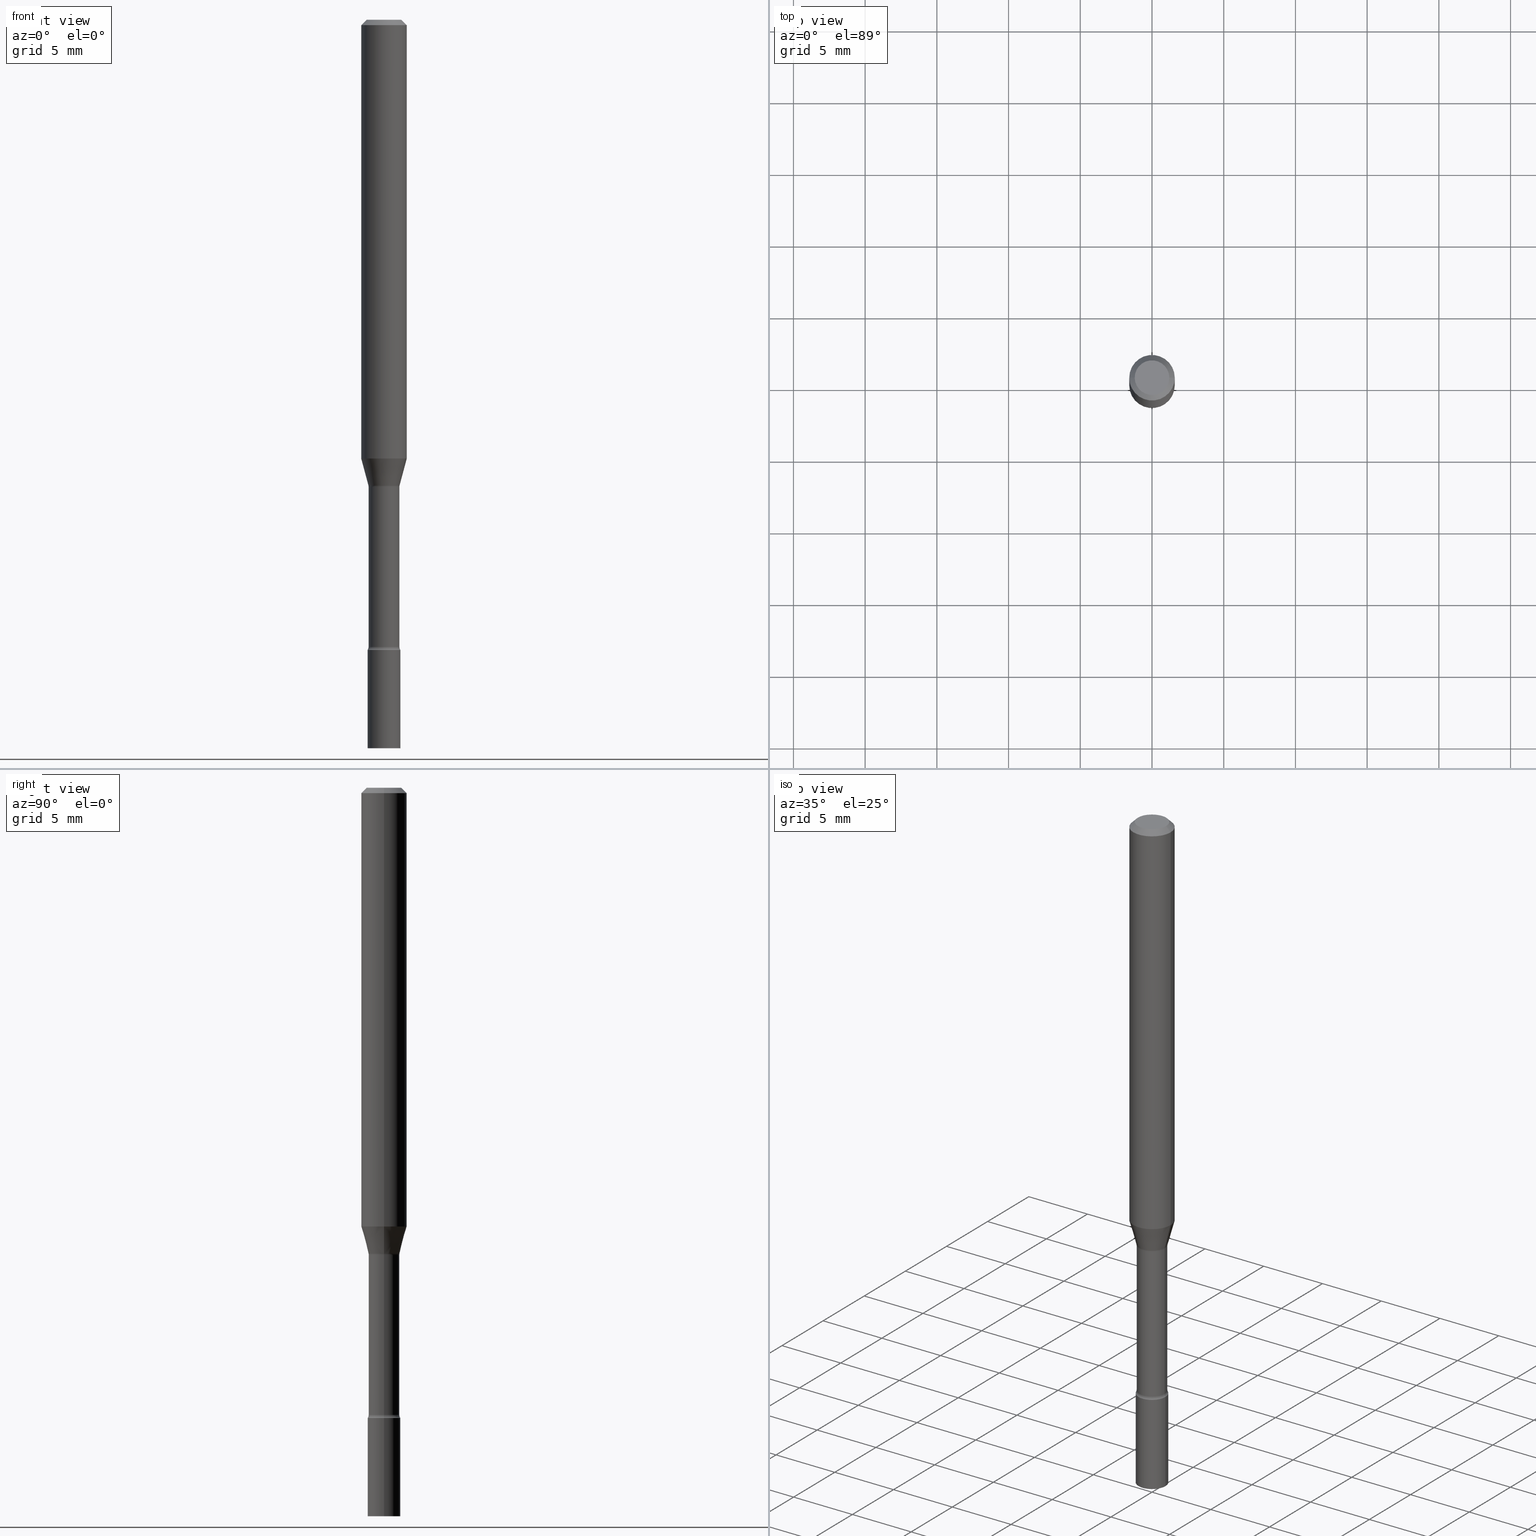
[diagram: canonical four-view strip — front | top / right | iso, engineering-drawing reading convention]
A machine part, canonical four-view strip (front | top / right | iso — engineering-drawing reading convention). The complete STEP part file that produces these views, byte-faithful:
ISO-10303-21;
HEADER;
FILE_DESCRIPTION (( 'STEP AP203' ),
    '1' );
FILE_NAME ('09879.STEP',
    '2024-03-09T02:42:45',
    ( '' ),
    ( '' ),
    'SwSTEP 2.0',
    'SolidWorks 2023',
    '' );
FILE_SCHEMA (( 'CONFIG_CONTROL_DESIGN' ));
ENDSEC;

DATA;
#1 = COORDINATED_UNIVERSAL_TIME_OFFSET ( 5, 0, .BEHIND. ) ;
#2 = DIRECTION ( 'NONE',  ( -6.982962677686266711E-15, -1.000000000000000000, 3.491481338843145583E-15 ) ) ;
#3 = ADVANCED_FACE ( 'NONE', ( #167 ), #329, .T. ) ;
#4 = DIRECTION ( 'NONE',  ( -2.445468806185136597E-29, 3.491481338843145583E-15, 1.000000000000000000 ) ) ;
#5 = PLANE ( 'NONE',  #238 ) ;
#6 = ADVANCED_FACE ( 'NONE', ( #178 ), #387, .T. ) ;
#7 = DIRECTION ( 'NONE',  ( -2.438088387897960049E-29, 3.491481338843145188E-15, 1.000000000000000000 ) ) ;
#8 = EDGE_LOOP ( 'NONE', ( #40, #136, #484, #93 ) ) ;
#9 = FACE_OUTER_BOUND ( 'NONE', #369, .T. ) ;
#10 = ORIENTED_EDGE ( 'NONE', *, *, #42, .T. ) ;
#11 = FACE_OUTER_BOUND ( 'NONE', #173, .T. ) ;
#12 = ORIENTED_EDGE ( 'NONE', *, *, #119, .F. ) ;
#13 = PRODUCT_RELATED_PRODUCT_CATEGORY ( 'detail', '', ( #360 ) ) ;
#14 = CLOSED_SHELL ( 'NONE', ( #498, #477, #147, #139, #80, #396, #460, #6, #153, #307, #335, #421, #3, #168 ) ) ;
#15 = AXIS2_PLACEMENT_3D ( 'NONE', #57, #413, #370 ) ;
#16 = CARTESIAN_POINT ( 'NONE',  ( 2.945842472490219307E-29, -4.205882321564354559E-15, -1.204612573687108945 ) ) ;
#17 = ORIENTED_EDGE ( 'NONE', *, *, #160, .F. ) ;
#18 = MANIFOLD_SOLID_BREP ( 'Body-Move/Copy2[1]', #361 ) ;
#19 = DATE_AND_TIME ( #298, #453 ) ;
#20 = CARTESIAN_POINT ( 'NONE',  ( 2.945842472490219307E-29, -4.205882321564354559E-15, -1.204612573687108945 ) ) ;
#21 = DATE_AND_TIME ( #426, #513 ) ;
#22 = DIRECTION ( 'NONE',  ( 1.000000000000000000, -6.982962677686269866E-15, 4.883557194083113462E-29 ) ) ;
#23 = VECTOR ( 'NONE', #64, 39.37007874015747433 ) ;
#24 = CIRCLE ( 'NONE', #202, 0.01500000000000004455 ) ;
#25 = EDGE_CURVE ( 'NONE', #493, #358, #330, .T. ) ;
#26 = DIRECTION ( 'NONE',  ( 1.000000000000000000, -6.982962677686266711E-15, 4.876176775795935793E-29 ) ) ;
#27 = AXIS2_PLACEMENT_3D ( 'NONE', #187, #230, #391 ) ;
#28 = ORIENTED_EDGE ( 'NONE', *, *, #221, .F. ) ;
#29 = PERSON_AND_ORGANIZATION ( #313, #179 ) ;
#30 = CARTESIAN_POINT ( 'NONE',  ( 0.04230000000000001814, -6.305666089183526283E-15, -1.721414547187247290 ) ) ;
#31 = CARTESIAN_POINT ( 'NONE',  ( 0.04499999999999999833, -6.354496036694523059E-15, -1.729999999999999760 ) ) ;
#32 = EDGE_CURVE ( 'NONE', #395, #517, #338, .T. ) ;
#33 = ORIENTED_EDGE ( 'NONE', *, *, #160, .T. ) ;
#34 = LOCAL_TIME ( 21, 42, 45.00000000000000000, #293 ) ;
#35 = FACE_OUTER_BOUND ( 'NONE', #510, .T. ) ;
#36 = ORIENTED_EDGE ( 'NONE', *, *, #469, .F. ) ;
#37 = DIRECTION ( 'NONE',  ( 1.000000000000000000, -6.982962677686265922E-15, 4.876176775795935793E-29 ) ) ;
#38 = VERTEX_POINT ( 'NONE', #504 ) ;
#39 = DIRECTION ( 'NONE',  ( 1.000000000000000000, -6.982962677686263555E-15, 4.883557194083111780E-29 ) ) ;
#40 = ORIENTED_EDGE ( 'NONE', *, *, #431, .F. ) ;
#41 = DIRECTION ( 'NONE',  ( 1.000000000000000000, -6.982962677686247778E-15, 0.000000000000000000 ) ) ;
#42 = EDGE_CURVE ( 'NONE', #225, #414, #420, .T. ) ;
#43 = VECTOR ( 'NONE', #516, 39.37007874015748143 ) ;
#44 = CC_DESIGN_APPROVAL ( #198, ( #255 ) ) ;
#45 = ORIENTED_EDGE ( 'NONE', *, *, #319, .F. ) ;
#46 = CIRCLE ( 'NONE', #71, 0.06250000000000000000 ) ;
#47 = CARTESIAN_POINT ( 'NONE',  ( 0.04281111260566398957, -4.761384520821189262E-15, -1.278092501787273072 ) ) ;
#48 = FACE_OUTER_BOUND ( 'NONE', #130, .T. ) ;
#49 = EDGE_CURVE ( 'NONE', #38, #292, #182, .T. ) ;
#50 = FACE_OUTER_BOUND ( 'NONE', #373, .T. ) ;
#51 = AXIS2_PLACEMENT_3D ( 'NONE', #131, #95, #447 ) ;
#52 = DIRECTION ( 'NONE',  ( -2.445468806185136597E-29, 3.491481338843145583E-15, 1.000000000000000000 ) ) ;
#53 = UNCERTAINTY_MEASURE_WITH_UNIT (LENGTH_MEASURE( 1.000000000000000082E-05 ), #388, 'distance_accuracy_value', 'NONE');
#54 = ORIENTED_EDGE ( 'NONE', *, *, #103, .T. ) ;
#55 = CARTESIAN_POINT ( 'NONE',  ( 4.230661034700285954E-29, -6.040262716198641373E-15, -1.729999999999999760 ) ) ;
#56 = ORIENTED_EDGE ( 'NONE', *, *, #227, .F. ) ;
#57 = CARTESIAN_POINT ( 'NONE',  ( 3.125535344539897452E-29, -4.462436119305612978E-15, -1.278092501787273072 ) ) ;
#58 = EDGE_LOOP ( 'NONE', ( #354, #10, #442, #252 ) ) ;
#59 = AXIS2_PLACEMENT_3D ( 'NONE', #351, #2, #312 ) ;
#60 = AXIS2_PLACEMENT_3D ( 'NONE', #201, #169, #284 ) ;
#61 = DATE_AND_TIME ( #503, #34 ) ;
#62 = DIRECTION ( 'NONE',  ( -2.445468806185136597E-29, 3.491481338843145583E-15, 1.000000000000000000 ) ) ;
#63 = ADVANCED_BREP_SHAPE_REPRESENTATION ( '09879', ( #18, #363, #127 ), #409 ) ;
#64 = DIRECTION ( 'NONE',  ( -0.2588190451025213501, 5.211531920934551042E-15, 0.9659258262890682012 ) ) ;
#65 = EDGE_CURVE ( 'NONE', #292, #390, #46, .T. ) ;
#66 = DIRECTION ( 'NONE',  ( -2.445468806185136597E-29, 3.491481338843145583E-15, 1.000000000000000000 ) ) ;
#67 = CIRCLE ( 'NONE', #59, 0.01500000000000002720 ) ;
#68 = SECURITY_CLASSIFICATION ( '', '', #508 ) ;
#69 = DIRECTION ( 'NONE',  ( -2.445468806185136597E-29, 3.491481338843145583E-15, 1.000000000000000000 ) ) ;
#70 = FACE_OUTER_BOUND ( 'NONE', #206, .T. ) ;
#71 = AXIS2_PLACEMENT_3D ( 'NONE', #20, #385, #224 ) ;
#72 = DIRECTION ( 'NONE',  ( 1.000000000000000000, 0.000000000000000000, 0.000000000000000000 ) ) ;
#73 = DIRECTION ( 'NONE',  ( 2.445468806185136597E-29, -3.491481338843145583E-15, -1.000000000000000000 ) ) ;
#74 = EDGE_CURVE ( 'NONE', #113, #203, #357, .T. ) ;
#75 = PLANE ( 'NONE',  #195 ) ;
#76 = CARTESIAN_POINT ( 'NONE',  ( -0.04499999999999999833, -6.191868465850420113E-15, -2.000000000000000000 ) ) ;
#77 = ORIENTED_EDGE ( 'NONE', *, *, #74, .F. ) ;
#78 = CARTESIAN_POINT ( 'NONE',  ( 3.135029353058570194E-29, -4.475991047297303565E-15, -1.281974787463810994 ) ) ;
#79 = ORIENTED_EDGE ( 'NONE', *, *, #300, .T. ) ;
#80 = ADVANCED_FACE ( 'NONE', ( #343 ), #308, .T. ) ;
#81 = LINE ( 'NONE', #151, #43 ) ;
#82 = ORIENTED_EDGE ( 'NONE', *, *, #443, .T. ) ;
#83 = CALENDAR_DATE ( 2024, 8, 3 ) ;
#84 = DIRECTION ( 'NONE',  ( 7.105427357601001859E-15, 1.000000000000000000, -3.491481338843145583E-15 ) ) ;
#85 = CIRCLE ( 'NONE', #350, 0.04281111260566398957 ) ;
#86 = AXIS2_PLACEMENT_3D ( 'NONE', #205, #406, #172 ) ;
#87 = CARTESIAN_POINT ( 'NONE',  ( 4.209665577659725366E-29, -6.010286767917396835E-15, -1.721414547187247290 ) ) ;
#88 = LINE ( 'NONE', #128, #280 ) ;
#89 = VERTEX_POINT ( 'NONE', #146 ) ;
#90 = AXIS2_PLACEMENT_3D ( 'NONE', #102, #222, #346 ) ;
#91 = AXIS2_PLACEMENT_3D ( 'NONE', #291, #69, #424 ) ;
#92 = DIRECTION ( 'NONE',  ( 7.105427357601001859E-15, 1.000000000000000000, -3.491481338843145583E-15 ) ) ;
#93 = ORIENTED_EDGE ( 'NONE', *, *, #347, .F. ) ;
#94 = APPROVAL ( #184, 'UNSPECIFIED' ) ;
#95 = DIRECTION ( 'NONE',  ( -2.445468806185136597E-29, 3.491481338843145583E-15, 1.000000000000000000 ) ) ;
#96 = EDGE_LOOP ( 'NONE', ( #352, #303 ) ) ;
#97 = APPLICATION_CONTEXT ( 'configuration controlled 3d designs of mechanical parts and assemblies' ) ;
#98 = PERSON_AND_ORGANIZATION_ROLE ( 'classification_officer' ) ;
#99 = VERTEX_POINT ( 'NONE', #506 ) ;
#100 = AXIS2_PLACEMENT_3D ( 'NONE', #245, #92, #368 ) ;
#101 = APPLICATION_PROTOCOL_DEFINITION ( 'international standard', 'config_control_design', 1994, #448 ) ;
#102 = CARTESIAN_POINT ( 'NONE',  ( 3.668203209277712094E-31, -5.237222008264728876E-17, -0.01500000000000003067 ) ) ;
#103 = EDGE_CURVE ( 'NONE', #203, #358, #145, .T. ) ;
#104 = PERSON_AND_ORGANIZATION_ROLE ( 'creator' ) ;
#105 = CARTESIAN_POINT ( 'NONE',  ( 0.000000000000000000, 0.000000000000000000, 0.000000000000000000 ) ) ;
#106 = COORDINATED_UNIVERSAL_TIME_OFFSET ( 5, 0, .BEHIND. ) ;
#107 = DIRECTION ( 'NONE',  ( 1.000000000000000000, -6.982962677686266711E-15, 4.876176775795935232E-29 ) ) ;
#108 = VECTOR ( 'NONE', #150, 39.37007874015748143 ) ;
#109 = CC_DESIGN_PERSON_AND_ORGANIZATION_ASSIGNMENT ( #111, #98, ( #68 ) ) ;
#110 = AXIS2_PLACEMENT_3D ( 'NONE', #488, #454, #489 ) ;
#111 = PERSON_AND_ORGANIZATION ( #313, #179 ) ;
#112 = LINE ( 'NONE', #180, #408 ) ;
#113 = VERTEX_POINT ( 'NONE', #30 ) ;
#114 = DIRECTION ( 'NONE',  ( 1.000000000000000000, -6.982962677686265133E-15, 0.000000000000000000 ) ) ;
#115 = ORIENTED_EDGE ( 'NONE', *, *, #42, .F. ) ;
#116 = DIRECTION ( 'NONE',  ( -2.445468806185136597E-29, 3.491481338843145583E-15, 1.000000000000000000 ) ) ;
#117 = VERTEX_POINT ( 'NONE', #471 ) ;
#118 = DIRECTION ( 'NONE',  ( -1.000000000000000000, 6.982962677686265922E-15, -4.876176775795935793E-29 ) ) ;
#119 = EDGE_CURVE ( 'NONE', #344, #490, #112, .T. ) ;
#120 = ORIENTED_EDGE ( 'NONE', *, *, #431, .T. ) ;
#121 = CARTESIAN_POINT ( 'NONE',  ( 3.125535344539897452E-29, -4.462436119305612978E-15, -1.278092501787273072 ) ) ;
#122 = ORIENTED_EDGE ( 'NONE', *, *, #300, .F. ) ;
#123 = DIRECTION ( 'NONE',  ( 1.000000000000000000, -6.982962677686266711E-15, 0.000000000000000000 ) ) ;
#124 = ADVANCED_FACE ( 'NONE', ( #474 ), #468, .T. ) ;
#125 = DIRECTION ( 'NONE',  ( 1.000000000000000000, -6.982962677686265133E-15, 0.000000000000000000 ) ) ;
#126 = AXIS2_PLACEMENT_3D ( 'NONE', #78, #483, #39 ) ;
#127 = AXIS2_PLACEMENT_3D ( 'NONE', #304, #422, #72 ) ;
#128 = CARTESIAN_POINT ( 'NONE',  ( -0.06250000000000000000, 4.440892098500626162E-16, -3.074334431409316114E-30 ) ) ;
#129 = DIRECTION ( 'NONE',  ( -2.445468806185136597E-29, 3.491481338843145583E-15, 1.000000000000000000 ) ) ;
#130 = EDGE_LOOP ( 'NONE', ( #266, #77, #311, #82 ) ) ;
#131 = CARTESIAN_POINT ( 'NONE',  ( 0.000000000000000000, 0.000000000000000000, 0.000000000000000000 ) ) ;
#132 = ORIENTED_EDGE ( 'NONE', *, *, #189, .F. ) ;
#133 = AXIS2_PLACEMENT_3D ( 'NONE', #254, #62, #260 ) ;
#134 = APPROVAL_PERSON_ORGANIZATION ( #232, #94, #398 ) ;
#135 = EDGE_CURVE ( 'NONE', #517, #490, #482, .T. ) ;
#136 = ORIENTED_EDGE ( 'NONE', *, *, #65, .T. ) ;
#137 = LENGTH_MEASURE_WITH_UNIT ( LENGTH_MEASURE( 0.02539999999999999897 ), #253 );
#138 = ORIENTED_EDGE ( 'NONE', *, *, #135, .T. ) ;
#139 = ADVANCED_FACE ( 'NONE', ( #70 ), #194, .T. ) ;
#140 = CARTESIAN_POINT ( 'NONE',  ( -0.04281111260566398957, -4.158244868587991251E-15, -1.278092501787273072 ) ) ;
#141 = AXIS2_PLACEMENT_3D ( 'NONE', #55, #129, #372 ) ;
#142 = PERSON_AND_ORGANIZATION ( #313, #179 ) ;
#143 = DIRECTION ( 'NONE',  ( -2.445468806185136597E-29, 3.491481338843145583E-15, 1.000000000000000000 ) ) ;
#144 = APPROVAL_DATE_TIME ( #61, #261 ) ;
#145 = LINE ( 'NONE', #302, #244 ) ;
#146 = CARTESIAN_POINT ( 'NONE',  ( -0.04500000000000001221, -5.720518485106595216E-15, -1.729999999999999760 ) ) ;
#147 = ADVANCED_FACE ( 'NONE', ( #296 ), #384, .F. ) ;
#148 = AXIS2_PLACEMENT_3D ( 'NONE', #267, #84, #404 ) ;
#149 = CIRCLE ( 'NONE', #91, 0.04281111260566398957 ) ;
#150 = DIRECTION ( 'NONE',  ( 0.7071067811865475727, -7.319954787623256045E-15, -0.7071067811865474617 ) ) ;
#151 = CARTESIAN_POINT ( 'NONE',  ( 0.04230000000000001814, -2.953793212661292014E-16, 2.062622776161681521E-30 ) ) ;
#152 = PLANE ( 'NONE',  #367 ) ;
#153 = ADVANCED_FACE ( 'NONE', ( #509 ), #218, .T. ) ;
#154 = TOROIDAL_SURFACE ( 'NONE', #126, 0.05730000000000001065, 0.01500000000000002720 ) ;
#155 = APPROVAL_PERSON_ORGANIZATION ( #142, #261, #257 ) ;
#156 = DIRECTION ( 'NONE',  ( 1.000000000000000000, -6.982962677686267499E-15, 4.876681293081646444E-29 ) ) ;
#157 = VECTOR ( 'NONE', #239, 39.37007874015748143 ) ;
#158 = VERTEX_POINT ( 'NONE', #31 ) ;
#159 = DIRECTION ( 'NONE',  ( 1.000000000000000000, -6.982962677686269077E-15, 0.000000000000000000 ) ) ;
#160 = EDGE_CURVE ( 'NONE', #203, #113, #264, .T. ) ;
#161 = FACE_OUTER_BOUND ( 'NONE', #336, .T. ) ;
#162 = CARTESIAN_POINT ( 'NONE',  ( -0.04499999999999999833, -6.191868465850420113E-15, -1.729999999999999760 ) ) ;
#163 = CIRCLE ( 'NONE', #246, 0.04499999999999999833 ) ;
#164 = DIRECTION ( 'NONE',  ( 1.000000000000000000, -6.982962677686269866E-15, 4.883557194083113462E-29 ) ) ;
#165 = ORIENTED_EDGE ( 'NONE', *, *, #243, .T. ) ;
#166 = DIRECTION ( 'NONE',  ( 1.000000000000000000, -6.982962677686265922E-15, 4.876176775795935793E-29 ) ) ;
#167 = FACE_OUTER_BOUND ( 'NONE', #228, .T. ) ;
#168 = ADVANCED_FACE ( 'NONE', ( #35 ), #154, .F. ) ;
#169 = DIRECTION ( 'NONE',  ( -2.445468806185136597E-29, 3.491481338843145583E-15, 1.000000000000000000 ) ) ;
#170 = ORIENTED_EDGE ( 'NONE', *, *, #227, .T. ) ;
#171 = CONICAL_SURFACE ( 'NONE', #315, 0.04281111260566398957, 0.2617993877991500740 ) ;
#172 = DIRECTION ( 'NONE',  ( 1.000000000000000000, -6.982962677686269077E-15, 0.000000000000000000 ) ) ;
#173 = EDGE_LOOP ( 'NONE', ( #416, #54, #461, #28 ) ) ;
#174 = CC_DESIGN_PERSON_AND_ORGANIZATION_ASSIGNMENT ( #29, #259, ( #255 ) ) ;
#175 = PERSON_AND_ORGANIZATION ( #313, #179 ) ;
#176 = DIRECTION ( 'NONE',  ( -2.445468806185136597E-29, 3.491481338843145583E-15, 1.000000000000000000 ) ) ;
#177 = PERSON_AND_ORGANIZATION ( #313, #179 ) ;
#178 = FACE_OUTER_BOUND ( 'NONE', #8, .T. ) ;
#179 = ORGANIZATION ( 'UNSPECIFIED', 'UNSPECIFIED', '' ) ;
#180 = CARTESIAN_POINT ( 'NONE',  ( -0.06250000000000000000, 3.840629472727443437E-16, -0.01500000000000003067 ) ) ;
#181 = ORIENTED_EDGE ( 'NONE', *, *, #135, .F. ) ;
#182 = LINE ( 'NONE', #140, #23 ) ;
#183 = CC_DESIGN_DATE_AND_TIME_ASSIGNMENT ( #229, #393, ( #68 ) ) ;
#184 = APPROVAL_STATUS ( 'not_yet_approved' ) ;
#185 = DIRECTION ( 'NONE',  ( -2.445468806185136597E-29, 3.491481338843145583E-15, 1.000000000000000000 ) ) ;
#186 = CIRCLE ( 'NONE', #100, 0.01500000000000004455 ) ;
#187 = CARTESIAN_POINT ( 'NONE',  ( 4.209665577659725366E-29, -6.010286767917396835E-15, -1.721414547187247290 ) ) ;
#188 = ORIENTED_EDGE ( 'NONE', *, *, #49, .T. ) ;
#189 = EDGE_CURVE ( 'NONE', #327, #390, #271, .T. ) ;
#190 = DIRECTION ( 'NONE',  ( -6.982962677686266711E-15, -1.000000000000000000, 3.491481338843145583E-15 ) ) ;
#191 = APPROVAL_DATE_TIME ( #277, #94 ) ;
#192 = DIRECTION ( 'NONE',  ( -2.445468806185136597E-29, 3.491481338843145583E-15, 1.000000000000000000 ) ) ;
#193 = ORIENTED_EDGE ( 'NONE', *, *, #204, .F. ) ;
#194 = CONICAL_SURFACE ( 'NONE', #90, 0.06250000000000000000, 0.7853981633974483900 ) ;
#195 = AXIS2_PLACEMENT_3D ( 'NONE', #322, #226, #118 ) ;
#196 = CARTESIAN_POINT ( 'NONE',  ( -0.04749999999999999362, 3.578768372314209027E-16, -2.891391092787141902E-17 ) ) ;
#197 = AXIS2_PLACEMENT_3D ( 'NONE', #501, #427, #382 ) ;
#198 = APPROVAL ( #223, 'UNSPECIFIED' ) ;
#199 = DIRECTION ( 'NONE',  ( 0.2588190451025213501, 1.565188264969621968E-15, 0.9659258262890682012 ) ) ;
#200 = DIRECTION ( 'NONE',  ( -2.445468806185136877E-29, 3.491481338843145188E-15, 1.000000000000000000 ) ) ;
#201 = CARTESIAN_POINT ( 'NONE',  ( 0.000000000000000000, 0.000000000000000000, 0.000000000000000000 ) ) ;
#202 = AXIS2_PLACEMENT_3D ( 'NONE', #441, #190, #41 ) ;
#203 = VERTEX_POINT ( 'NONE', #435 ) ;
#204 = EDGE_CURVE ( 'NONE', #327, #493, #67, .T. ) ;
#205 = CARTESIAN_POINT ( 'NONE',  ( 4.890937612370273194E-29, -6.982962677686291165E-15, -2.000000000000000000 ) ) ;
#206 = EDGE_LOOP ( 'NONE', ( #411, #269, #138, #12 ) ) ;
#207 = FACE_OUTER_BOUND ( 'NONE', #320, .T. ) ;
#208 = ORIENTED_EDGE ( 'NONE', *, *, #65, .F. ) ;
#209 = FACE_OUTER_BOUND ( 'NONE', #289, .T. ) ;
#210 = ORIENTED_EDGE ( 'NONE', *, *, #32, .F. ) ;
#211 = CC_DESIGN_PERSON_AND_ORGANIZATION_ASSIGNMENT ( #177, #104, ( #255 ) ) ;
#212 = AXIS2_PLACEMENT_3D ( 'NONE', #339, #383, #418 ) ;
#213 = PERSON_AND_ORGANIZATION_ROLE ( 'creator' ) ;
#214 = PERSON_AND_ORGANIZATION ( #313, #179 ) ;
#215 = DIRECTION ( 'NONE',  ( 1.000000000000000000, -6.982962677686262766E-15, 0.000000000000000000 ) ) ;
#216 =( NAMED_UNIT ( * ) SI_UNIT ( $, .STERADIAN. ) SOLID_ANGLE_UNIT ( ) );
#217 = DIRECTION ( 'NONE',  ( 1.000000000000000000, -6.982962677686262766E-15, 0.000000000000000000 ) ) ;
#218 = CONICAL_SURFACE ( 'NONE', #316, 0.06250000000000000000, 0.7853981633974483900 ) ;
#219 = APPROVAL_PERSON_ORGANIZATION ( #214, #198, #381 ) ;
#220 = AXIS2_PLACEMENT_3D ( 'NONE', #263, #305, #423 ) ;
#221 = EDGE_CURVE ( 'NONE', #113, #493, #81, .T. ) ;
#222 = DIRECTION ( 'NONE',  ( 2.445468806185136597E-29, -3.491481338843145583E-15, -1.000000000000000000 ) ) ;
#223 = APPROVAL_STATUS ( 'not_yet_approved' ) ;
#224 = DIRECTION ( 'NONE',  ( 1.000000000000000000, -6.982962677686270655E-15, 0.000000000000000000 ) ) ;
#225 = VERTEX_POINT ( 'NONE', #76 ) ;
#226 = DIRECTION ( 'NONE',  ( 2.438088387897960049E-29, -3.491481338843145188E-15, -1.000000000000000000 ) ) ;
#227 = EDGE_CURVE ( 'NONE', #38, #327, #85, .T. ) ;
#228 = EDGE_LOOP ( 'NONE', ( #333, #33, #451, #45 ) ) ;
#229 = DATE_AND_TIME ( #270, #359 ) ;
#230 = DIRECTION ( 'NONE',  ( -2.445468806185136597E-29, 3.491481338843145583E-15, 1.000000000000000000 ) ) ;
#231 = ORIENTED_EDGE ( 'NONE', *, *, #268, .T. ) ;
#232 = PERSON_AND_ORGANIZATION ( #313, #179 ) ;
#233 = CARTESIAN_POINT ( 'NONE',  ( 4.230661034700285954E-29, -6.040262716198641373E-15, -1.729999999999999760 ) ) ;
#234 = ORIENTED_EDGE ( 'NONE', *, *, #25, .T. ) ;
#235 = DIRECTION ( 'NONE',  ( -2.445468806185136597E-29, 3.491481338843145583E-15, 1.000000000000000000 ) ) ;
#236 = EDGE_LOOP ( 'NONE', ( #515, #120, #181, #456 ) ) ;
#237 = SHAPE_DEFINITION_REPRESENTATION ( #403, #63 ) ;
#238 = AXIS2_PLACEMENT_3D ( 'NONE', #492, #7, #166 ) ;
#239 = DIRECTION ( 'NONE',  ( -2.445468806185136877E-29, 3.491481338843145188E-15, 1.000000000000000000 ) ) ;
#240 = PRODUCT_DEFINITION ( 'UNKNOWN', '', #255, #318 ) ;
#241 = DIRECTION ( 'NONE',  ( 1.000000000000000000, -6.982962677686270655E-15, 0.000000000000000000 ) ) ;
#242 = CARTESIAN_POINT ( 'NONE',  ( 0.06250000000000000000, -4.642317488919745439E-15, -1.204612573687108945 ) ) ;
#243 = EDGE_CURVE ( 'NONE', #99, #158, #485, .T. ) ;
#244 = VECTOR ( 'NONE', #466, 39.37007874015748143 ) ;
#245 = CARTESIAN_POINT ( 'NONE',  ( -0.05730000000000005922, -5.603145780326858515E-15, -1.721414547187247290 ) ) ;
#246 = AXIS2_PLACEMENT_3D ( 'NONE', #233, #4, #159 ) ;
#247 = ORIENTED_EDGE ( 'NONE', *, *, #452, .T. ) ;
#248 = CARTESIAN_POINT ( 'NONE',  ( 0.04749999999999999362, -4.035134999187579609E-16, -2.891391092786643933E-17 ) ) ;
#249 = ORIENTED_EDGE ( 'NONE', *, *, #437, .T. ) ;
#250 = CARTESIAN_POINT ( 'NONE',  ( 0.04230000000000001814, -4.771370368563433013E-15, -1.281974787463810994 ) ) ;
#251 = EDGE_CURVE ( 'NONE', #38, #358, #375, .T. ) ;
#252 = ORIENTED_EDGE ( 'NONE', *, *, #243, .F. ) ;
#253 =( LENGTH_UNIT ( ) NAMED_UNIT ( * ) SI_UNIT ( $, .METRE. ) );
#254 = CARTESIAN_POINT ( 'NONE',  ( 3.668203209277712094E-31, -5.237222008264728876E-17, -0.01500000000000003067 ) ) ;
#255 = PRODUCT_DEFINITION_FORMATION_WITH_SPECIFIED_SOURCE ( 'ANY', '', #360, .NOT_KNOWN. ) ;
#256 = CIRCLE ( 'NONE', #436, 0.04230000000000001814 ) ;
#257 = APPROVAL_ROLE ( '' ) ;
#258 = DIRECTION ( 'NONE',  ( -2.445468806185136597E-29, 3.491481338843145583E-15, 1.000000000000000000 ) ) ;
#259 = PERSON_AND_ORGANIZATION_ROLE ( 'design_supplier' ) ;
#260 = DIRECTION ( 'NONE',  ( 1.000000000000000000, -6.982962677686266711E-15, 0.000000000000000000 ) ) ;
#261 = APPROVAL ( #345, 'UNSPECIFIED' ) ;
#262 = PERSON_AND_ORGANIZATION ( #313, #179 ) ;
#263 = CARTESIAN_POINT ( 'NONE',  ( 0.000000000000000000, 0.000000000000000000, 0.000000000000000000 ) ) ;
#264 = CIRCLE ( 'NONE', #27, 0.04230000000000001814 ) ;
#265 = CARTESIAN_POINT ( 'NONE',  ( 4.209665577659725366E-29, -6.010286767917396835E-15, -1.721414547187247290 ) ) ;
#266 = ORIENTED_EDGE ( 'NONE', *, *, #374, .F. ) ;
#267 = CARTESIAN_POINT ( 'NONE',  ( -0.05730000000000001065, -4.068850059706766033E-15, -1.281974787463810994 ) ) ;
#268 = EDGE_CURVE ( 'NONE', #395, #344, #445, .T. ) ;
#269 = ORIENTED_EDGE ( 'NONE', *, *, #32, .T. ) ;
#270 = CALENDAR_DATE ( 2024, 8, 3 ) ;
#271 = LINE ( 'NONE', #47, #286 ) ;
#272 = AXIS2_PLACEMENT_3D ( 'NONE', #16, #407, #241 ) ;
#273 = DIRECTION ( 'NONE',  ( -2.445468806185136877E-29, 3.491481338843145188E-15, 1.000000000000000000 ) ) ;
#274 = DIRECTION ( 'NONE',  ( -2.438088387897960049E-29, 3.491481338843145188E-15, 1.000000000000000000 ) ) ;
#275 = EDGE_LOOP ( 'NONE', ( #17, #397, #79, #497 ) ) ;
#276 = CC_DESIGN_PERSON_AND_ORGANIZATION_ASSIGNMENT ( #262, #213, ( #240 ) ) ;
#277 = DATE_AND_TIME ( #83, #428 ) ;
#278 = CARTESIAN_POINT ( 'NONE',  ( -0.04230000000000001814, -4.942579330380827396E-15, -1.281974787463810994 ) ) ;
#279 = VECTOR ( 'NONE', #273, 39.37007874015748143 ) ;
#280 = VECTOR ( 'NONE', #200, 39.37007874015748143 ) ;
#281 = CYLINDRICAL_SURFACE ( 'NONE', #51, 0.04499999999999999833 ) ;
#282 = CARTESIAN_POINT ( 'NONE',  ( 3.142333204959308423E-16, 0.04499999999999301781, -2.000000000000000444 ) ) ;
#283 = EDGE_CURVE ( 'NONE', #390, #517, #317, .T. ) ;
#284 = DIRECTION ( 'NONE',  ( 1.000000000000000000, -6.982962677686266711E-15, 4.876176775795935232E-29 ) ) ;
#285 = ORIENTED_EDGE ( 'NONE', *, *, #507, .F. ) ;
#286 = VECTOR ( 'NONE', #199, 39.37007874015747433 ) ;
#287 = DIRECTION ( 'NONE',  ( -2.445468806185136597E-29, 3.491481338843145583E-15, 1.000000000000000000 ) ) ;
#288 = AXIS2_PLACEMENT_3D ( 'NONE', #331, #328, #496 ) ;
#289 = EDGE_LOOP ( 'NONE', ( #115, #247, #165, #36 ) ) ;
#290 = CC_DESIGN_DATE_AND_TIME_ASSIGNMENT ( #19, #467, ( #240 ) ) ;
#291 = CARTESIAN_POINT ( 'NONE',  ( 3.125535344539897452E-29, -4.462436119305612978E-15, -1.278092501787273072 ) ) ;
#292 = VERTEX_POINT ( 'NONE', #479 ) ;
#293 = COORDINATED_UNIVERSAL_TIME_OFFSET ( 5, 0, .BEHIND. ) ;
#294 = ORIENTED_EDGE ( 'NONE', *, *, #443, .F. ) ;
#295 = DIMENSIONAL_EXPONENTS ( 1.000000000000000000, 0.000000000000000000, 0.000000000000000000, 0.000000000000000000, 0.000000000000000000, 0.000000000000000000, 0.000000000000000000 ) ;
#296 = FACE_OUTER_BOUND ( 'NONE', #275, .T. ) ;
#297 = TOROIDAL_SURFACE ( 'NONE', #212, 0.05730000000000001065, 0.01500000000000002720 ) ;
#298 = CALENDAR_DATE ( 2024, 8, 3 ) ;
#299 = DIRECTION ( 'NONE',  ( -2.445468806185136877E-29, 3.491481338843145188E-15, 1.000000000000000000 ) ) ;
#300 = EDGE_CURVE ( 'NONE', #89, #117, #417, .T. ) ;
#301 = MECHANICAL_CONTEXT ( 'NONE', #448, 'mechanical' ) ;
#302 = CARTESIAN_POINT ( 'NONE',  ( -0.04230000000000001814, 3.005595772265225075E-16, -2.080709543177826024E-30 ) ) ;
#303 = ORIENTED_EDGE ( 'NONE', *, *, #452, .F. ) ;
#304 = CARTESIAN_POINT ( 'NONE',  ( 0.000000000000000000, 0.000000000000000000, 0.000000000000000000 ) ) ;
#305 = DIRECTION ( 'NONE',  ( -2.445468806185136597E-29, 3.491481338843145583E-15, 1.000000000000000000 ) ) ;
#306 = CC_DESIGN_SECURITY_CLASSIFICATION ( #68, ( #255 ) ) ;
#307 = ADVANCED_FACE ( 'NONE', ( #161 ), #75, .F. ) ;
#308 = CYLINDRICAL_SURFACE ( 'NONE', #334, 0.06250000000000000000 ) ;
#309 = ORIENTED_EDGE ( 'NONE', *, *, #507, .T. ) ;
#310 = DIRECTION ( 'NONE',  ( 1.000000000000000000, -6.982962677686269077E-15, 0.000000000000000000 ) ) ;
#311 = ORIENTED_EDGE ( 'NONE', *, *, #340, .T. ) ;
#312 = DIRECTION ( 'NONE',  ( 1.000000000000000000, -6.982962677686255667E-15, 0.000000000000000000 ) ) ;
#313 = PERSON ( 'UNSPECIFIED', 'UNSPECIFIED', 'UNSPECIFIED', ('UNSPECIFIED'), ('UNSPECIFIED'), ('UNSPECIFIED') ) ;
#314 = ORIENTED_EDGE ( 'NONE', *, *, #324, .T. ) ;
#315 = AXIS2_PLACEMENT_3D ( 'NONE', #410, #449, #125 ) ;
#316 = AXIS2_PLACEMENT_3D ( 'NONE', #432, #73, #389 ) ;
#317 = LINE ( 'NONE', #439, #279 ) ;
#318 = DESIGN_CONTEXT ( 'detailed design', #97, 'design' ) ;
#319 = EDGE_CURVE ( 'NONE', #358, #493, #256, .T. ) ;
#320 = EDGE_LOOP ( 'NONE', ( #309, #188, #481, #132 ) ) ;
#321 = DIRECTION ( 'NONE',  ( -2.445468806185136597E-29, 3.491481338843145583E-15, 1.000000000000000000 ) ) ;
#322 = CARTESIAN_POINT ( 'NONE',  ( 3.316907271900976096E-16, 0.04749999999999999362, -1.803023190589839165E-16 ) ) ;
#323 = AXIS2_PLACEMENT_3D ( 'NONE', #282, #486, #457 ) ;
#324 = EDGE_CURVE ( 'NONE', #158, #414, #163, .T. ) ;
#325 = PLANE ( 'NONE',  #323 ) ;
#326 = CARTESIAN_POINT ( 'NONE',  ( 7.070806723891919892E-46, -1.009523804376275404E-31, -2.891391092786900929E-17 ) ) ;
#327 = VERTEX_POINT ( 'NONE', #355 ) ;
#328 = DIRECTION ( 'NONE',  ( -2.445468806185136597E-29, 3.491481338843145583E-15, 1.000000000000000000 ) ) ;
#329 = CYLINDRICAL_SURFACE ( 'NONE', #470, 0.04230000000000001814 ) ;
#330 = CIRCLE ( 'NONE', #480, 0.04230000000000001814 ) ;
#331 = CARTESIAN_POINT ( 'NONE',  ( 4.890937612370273194E-29, -6.982962677686291165E-15, -2.000000000000000000 ) ) ;
#332 = CC_DESIGN_APPROVAL ( #94, ( #68 ) ) ;
#333 = ORIENTED_EDGE ( 'NONE', *, *, #103, .F. ) ;
#334 = AXIS2_PLACEMENT_3D ( 'NONE', #341, #176, #26 ) ;
#335 = ADVANCED_FACE ( 'NONE', ( #518 ), #152, .F. ) ;
#336 = EDGE_LOOP ( 'NONE', ( #249, #231 ) ) ;
#337 = COORDINATED_UNIVERSAL_TIME_OFFSET ( 5, 0, .BEHIND. ) ;
#338 = LINE ( 'NONE', #425, #108 ) ;
#339 = CARTESIAN_POINT ( 'NONE',  ( 3.135029353058570194E-29, -4.475991047297303565E-15, -1.281974787463810994 ) ) ;
#340 = EDGE_CURVE ( 'NONE', #113, #117, #24, .T. ) ;
#341 = CARTESIAN_POINT ( 'NONE',  ( 0.000000000000000000, 0.000000000000000000, 0.000000000000000000 ) ) ;
#342 = CIRCLE ( 'NONE', #110, 0.04499999999999999833 ) ;
#343 = FACE_OUTER_BOUND ( 'NONE', #236, .T. ) ;
#344 = VERTEX_POINT ( 'NONE', #196 ) ;
#345 = APPROVAL_STATUS ( 'not_yet_approved' ) ;
#346 = DIRECTION ( 'NONE',  ( -1.000000000000000000, 6.982962677686266711E-15, 0.000000000000000000 ) ) ;
#347 = EDGE_CURVE ( 'NONE', #490, #517, #502, .T. ) ;
#348 = EDGE_LOOP ( 'NONE', ( #294, #122 ) ) ;
#349 = CARTESIAN_POINT ( 'NONE',  ( -0.04499999999999999833, 3.197442310920450718E-16, -2.213520790614707560E-30 ) ) ;
#350 = AXIS2_PLACEMENT_3D ( 'NONE', #121, #192, #114 ) ;
#351 = CARTESIAN_POINT ( 'NONE',  ( 0.05730000000000001065, -4.876114808728727171E-15, -1.281974787463810994 ) ) ;
#352 = ORIENTED_EDGE ( 'NONE', *, *, #491, .F. ) ;
#353 = CARTESIAN_POINT ( 'NONE',  ( 7.070806723891919892E-46, -1.009523804376275404E-31, -2.891391092786900929E-17 ) ) ;
#354 = ORIENTED_EDGE ( 'NONE', *, *, #491, .T. ) ;
#355 = CARTESIAN_POINT ( 'NONE',  ( 0.04281111260566398957, -4.761384520821189262E-15, -1.278092501787273072 ) ) ;
#356 = CC_DESIGN_PERSON_AND_ORGANIZATION_ASSIGNMENT ( #175, #463, ( #360 ) ) ;
#357 = CIRCLE ( 'NONE', #429, 0.04230000000000001814 ) ;
#358 = VERTEX_POINT ( 'NONE', #278 ) ;
#359 = LOCAL_TIME ( 21, 42, 45.00000000000000000, #337 ) ;
#360 = PRODUCT ( '09879', '09879', '', ( #301 ) ) ;
#361 = CLOSED_SHELL ( 'NONE', ( #124, #380, #412, #365 ) ) ;
#362 = CARTESIAN_POINT ( 'NONE',  ( 3.668203209277712094E-31, -5.237222008264728876E-17, -0.01500000000000003067 ) ) ;
#363 = MANIFOLD_SOLID_BREP ( 'Body-Move/Copy2[2]', #14 ) ;
#364 = CARTESIAN_POINT ( 'NONE',  ( 4.230661034700285954E-29, -6.040262716198641373E-15, -1.729999999999999760 ) ) ;
#365 = ADVANCED_FACE ( 'NONE', ( #444 ), #325, .T. ) ;
#366 = DIRECTION ( 'NONE',  ( 1.000000000000000000, -6.982962677686267499E-15, 4.876681293081646444E-29 ) ) ;
#367 = AXIS2_PLACEMENT_3D ( 'NONE', #394, #274, #37 ) ;
#368 = DIRECTION ( 'NONE',  ( -1.000000000000000000, 7.105427357600969515E-15, 0.000000000000000000 ) ) ;
#369 = EDGE_LOOP ( 'NONE', ( #314, #401 ) ) ;
#370 = DIRECTION ( 'NONE',  ( 1.000000000000000000, -6.982962677686265133E-15, 0.000000000000000000 ) ) ;
#371 = EDGE_LOOP ( 'NONE', ( #56, #378, #475, #193 ) ) ;
#372 = DIRECTION ( 'NONE',  ( 1.000000000000000000, -6.982962677686269077E-15, 0.000000000000000000 ) ) ;
#373 = EDGE_LOOP ( 'NONE', ( #520, #170, #434, #208 ) ) ;
#374 = EDGE_CURVE ( 'NONE', #203, #89, #186, .T. ) ;
#375 = CIRCLE ( 'NONE', #148, 0.01500000000000002720 ) ;
#376 = CYLINDRICAL_SURFACE ( 'NONE', #60, 0.04230000000000001814 ) ;
#377 = CIRCLE ( 'NONE', #141, 0.04499999999999999833 ) ;
#378 = ORIENTED_EDGE ( 'NONE', *, *, #251, .T. ) ;
#379 = CARTESIAN_POINT ( 'NONE',  ( 4.209665577659725366E-29, -6.010286767917396835E-15, -1.721414547187247290 ) ) ;
#380 = ADVANCED_FACE ( 'NONE', ( #9 ), #5, .T. ) ;
#381 = APPROVAL_ROLE ( '' ) ;
#382 = DIRECTION ( 'NONE',  ( 1.000000000000000000, -6.982962677686266711E-15, 4.876176775795935793E-29 ) ) ;
#383 = DIRECTION ( 'NONE',  ( -2.445468806185136597E-29, 3.491481338843145583E-15, 1.000000000000000000 ) ) ;
#384 = TOROIDAL_SURFACE ( 'NONE', #494, 0.05730000000000005922, 0.01500000000000004455 ) ;
#385 = DIRECTION ( 'NONE',  ( -2.445468806185136597E-29, 3.491481338843145583E-15, 1.000000000000000000 ) ) ;
#386 = CIRCLE ( 'NONE', #288, 0.04499999999999999833 ) ;
#387 = CYLINDRICAL_SURFACE ( 'NONE', #220, 0.06250000000000000000 ) ;
#388 =( CONVERSION_BASED_UNIT ( 'INCH', #137 ) LENGTH_UNIT ( ) NAMED_UNIT ( #295 ) );
#389 = DIRECTION ( 'NONE',  ( -1.000000000000000000, 6.982962677686266711E-15, 0.000000000000000000 ) ) ;
#390 = VERTEX_POINT ( 'NONE', #242 ) ;
#391 = DIRECTION ( 'NONE',  ( 1.000000000000000000, -6.982962677686262766E-15, 0.000000000000000000 ) ) ;
#392 = CONICAL_SURFACE ( 'NONE', #15, 0.04281111260566398957, 0.2617993877991500740 ) ;
#393 = DATE_TIME_ROLE ( 'classification_date' ) ;
#394 = CARTESIAN_POINT ( 'NONE',  ( 3.142333204959242356E-16, 0.04499999999999395456, -1.730000000000000204 ) ) ;
#395 = VERTEX_POINT ( 'NONE', #248 ) ;
#396 = ADVANCED_FACE ( 'NONE', ( #207 ), #171, .T. ) ;
#397 = ORIENTED_EDGE ( 'NONE', *, *, #374, .T. ) ;
#398 = APPROVAL_ROLE ( '' ) ;
#399 = DIRECTION ( 'NONE',  ( 1.000000000000000000, -6.982962677686262766E-15, 0.000000000000000000 ) ) ;
#400 = VECTOR ( 'NONE', #299, 39.37007874015748143 ) ;
#401 = ORIENTED_EDGE ( 'NONE', *, *, #469, .T. ) ;
#402 = TOROIDAL_SURFACE ( 'NONE', #487, 0.05730000000000005922, 0.01500000000000004455 ) ;
#403 = PRODUCT_DEFINITION_SHAPE ( 'NONE', 'NONE',  #240 ) ;
#404 = DIRECTION ( 'NONE',  ( -1.000000000000000000, 7.105427357601009747E-15, 0.000000000000000000 ) ) ;
#405 = EDGE_CURVE ( 'NONE', #390, #292, #462, .T. ) ;
#406 = DIRECTION ( 'NONE',  ( -2.445468806185136597E-29, 3.491481338843145583E-15, 1.000000000000000000 ) ) ;
#407 = DIRECTION ( 'NONE',  ( -2.445468806185136597E-29, 3.491481338843145583E-15, 1.000000000000000000 ) ) ;
#408 = VECTOR ( 'NONE', #512, 39.37007874015748143 ) ;
#409 =( GEOMETRIC_REPRESENTATION_CONTEXT ( 3 ) GLOBAL_UNCERTAINTY_ASSIGNED_CONTEXT ( ( #53 ) ) GLOBAL_UNIT_ASSIGNED_CONTEXT ( ( #388, #430, #216 ) ) REPRESENTATION_CONTEXT ( 'NONE', 'WORKASPACE' ) );
#410 = CARTESIAN_POINT ( 'NONE',  ( 3.125535344539897452E-29, -4.462436119305612978E-15, -1.278092501787273072 ) ) ;
#411 = ORIENTED_EDGE ( 'NONE', *, *, #268, .F. ) ;
#412 = ADVANCED_FACE ( 'NONE', ( #209 ), #281, .T. ) ;
#413 = DIRECTION ( 'NONE',  ( -2.445468806185136597E-29, 3.491481338843145583E-15, 1.000000000000000000 ) ) ;
#414 = VERTEX_POINT ( 'NONE', #162 ) ;
#415 = FACE_OUTER_BOUND ( 'NONE', #371, .T. ) ;
#416 = ORIENTED_EDGE ( 'NONE', *, *, #74, .T. ) ;
#417 = CIRCLE ( 'NONE', #455, 0.04499999999999999833 ) ;
#418 = DIRECTION ( 'NONE',  ( 1.000000000000000000, -6.982962677686263555E-15, 4.883557194083111780E-29 ) ) ;
#419 = AXIS2_PLACEMENT_3D ( 'NONE', #326, #52, #366 ) ;
#420 = LINE ( 'NONE', #349, #400 ) ;
#421 = ADVANCED_FACE ( 'NONE', ( #48 ), #402, .F. ) ;
#422 = DIRECTION ( 'NONE',  ( 0.000000000000000000, 0.000000000000000000, 1.000000000000000000 ) ) ;
#423 = DIRECTION ( 'NONE',  ( 1.000000000000000000, -6.982962677686266711E-15, 4.876176775795935793E-29 ) ) ;
#424 = DIRECTION ( 'NONE',  ( 1.000000000000000000, -6.982962677686265133E-15, 0.000000000000000000 ) ) ;
#425 = CARTESIAN_POINT ( 'NONE',  ( 0.06250000000000000000, -4.811533449433680977E-16, -0.01500000000000003067 ) ) ;
#426 = CALENDAR_DATE ( 2024, 8, 3 ) ;
#427 = DIRECTION ( 'NONE',  ( -2.445468806185136597E-29, 3.491481338843145583E-15, 1.000000000000000000 ) ) ;
#428 = LOCAL_TIME ( 21, 42, 45.00000000000000000, #1 ) ;
#429 = AXIS2_PLACEMENT_3D ( 'NONE', #379, #66, #215 ) ;
#430 =( NAMED_UNIT ( * ) PLANE_ANGLE_UNIT ( ) SI_UNIT ( $, .RADIAN. ) );
#431 = EDGE_CURVE ( 'NONE', #292, #490, #88, .T. ) ;
#432 = CARTESIAN_POINT ( 'NONE',  ( 3.668203209277712094E-31, -5.237222008264728876E-17, -0.01500000000000003067 ) ) ;
#433 = CARTESIAN_POINT ( 'NONE',  ( 0.04499999999999999833, -3.142333204958819823E-16, 2.194279549108170967E-30 ) ) ;
#434 = ORIENTED_EDGE ( 'NONE', *, *, #189, .T. ) ;
#435 = CARTESIAN_POINT ( 'NONE',  ( -0.04230000000000001814, -5.715122837898735610E-15, -1.721414547187247290 ) ) ;
#436 = AXIS2_PLACEMENT_3D ( 'NONE', #476, #116, #399 ) ;
#437 = EDGE_CURVE ( 'NONE', #344, #395, #472, .T. ) ;
#438 = ORIENTED_EDGE ( 'NONE', *, *, #347, .T. ) ;
#439 = CARTESIAN_POINT ( 'NONE',  ( 0.06250000000000000000, -4.364351673553916694E-16, 3.047610484872459871E-30 ) ) ;
#440 = ORIENTED_EDGE ( 'NONE', *, *, #119, .T. ) ;
#441 = CARTESIAN_POINT ( 'NONE',  ( 0.05730000000000005922, -6.410410529348819652E-15, -1.721414547187247290 ) ) ;
#442 = ORIENTED_EDGE ( 'NONE', *, *, #324, .F. ) ;
#443 = EDGE_CURVE ( 'NONE', #117, #89, #342, .T. ) ;
#444 = FACE_OUTER_BOUND ( 'NONE', #96, .T. ) ;
#445 = CIRCLE ( 'NONE', #511, 0.04749999999999999362 ) ;
#446 = CC_DESIGN_APPROVAL ( #261, ( #240 ) ) ;
#447 = DIRECTION ( 'NONE',  ( 1.000000000000000000, -6.982962677686266711E-15, 4.876176775795935793E-29 ) ) ;
#448 = APPLICATION_CONTEXT ( 'configuration controlled 3d designs of mechanical parts and assemblies' ) ;
#449 = DIRECTION ( 'NONE',  ( -2.445468806185136597E-29, 3.491481338843145583E-15, 1.000000000000000000 ) ) ;
#450 = CARTESIAN_POINT ( 'NONE',  ( -0.06250000000000000000, -1.685038060973438203E-15, -0.01500000000000003067 ) ) ;
#451 = ORIENTED_EDGE ( 'NONE', *, *, #221, .T. ) ;
#452 = EDGE_CURVE ( 'NONE', #225, #99, #495, .T. ) ;
#453 = LOCAL_TIME ( 21, 42, 45.00000000000000000, #465 ) ;
#454 = DIRECTION ( 'NONE',  ( -2.445468806185136597E-29, 3.491481338843145583E-15, 1.000000000000000000 ) ) ;
#455 = AXIS2_PLACEMENT_3D ( 'NONE', #364, #235, #310 ) ;
#456 = ORIENTED_EDGE ( 'NONE', *, *, #283, .F. ) ;
#457 = DIRECTION ( 'NONE',  ( -1.000000000000000000, 6.982962677686265922E-15, -4.876176775795935793E-29 ) ) ;
#458 = EDGE_LOOP ( 'NONE', ( #210, #499, #440, #438 ) ) ;
#459 = APPROVAL_DATE_TIME ( #21, #198 ) ;
#460 = ADVANCED_FACE ( 'NONE', ( #50 ), #392, .T. ) ;
#461 = ORIENTED_EDGE ( 'NONE', *, *, #25, .F. ) ;
#462 = CIRCLE ( 'NONE', #272, 0.06250000000000000000 ) ;
#463 = PERSON_AND_ORGANIZATION_ROLE ( 'design_owner' ) ;
#464 = CARTESIAN_POINT ( 'NONE',  ( 3.135029353058570194E-29, -4.475991047297303565E-15, -1.281974787463810994 ) ) ;
#465 = COORDINATED_UNIVERSAL_TIME_OFFSET ( 5, 0, .BEHIND. ) ;
#466 = DIRECTION ( 'NONE',  ( -2.445468806185136877E-29, 3.491481338843145188E-15, 1.000000000000000000 ) ) ;
#467 = DATE_TIME_ROLE ( 'creation_date' ) ;
#468 = CYLINDRICAL_SURFACE ( 'NONE', #197, 0.04499999999999999833 ) ;
#469 = EDGE_CURVE ( 'NONE', #414, #158, #377, .T. ) ;
#470 = AXIS2_PLACEMENT_3D ( 'NONE', #105, #143, #107 ) ;
#471 = CARTESIAN_POINT ( 'NONE',  ( 0.04500000000000001221, -6.354496036694523059E-15, -1.729999999999999760 ) ) ;
#472 = CIRCLE ( 'NONE', #419, 0.04749999999999999362 ) ;
#473 = ORIENTED_EDGE ( 'NONE', *, *, #251, .F. ) ;
#474 = FACE_OUTER_BOUND ( 'NONE', #58, .T. ) ;
#475 = ORIENTED_EDGE ( 'NONE', *, *, #319, .T. ) ;
#476 = CARTESIAN_POINT ( 'NONE',  ( 3.135029353058570194E-29, -4.475991047297303565E-15, -1.281974787463810994 ) ) ;
#477 = ADVANCED_FACE ( 'NONE', ( #11 ), #376, .T. ) ;
#478 = ORIENTED_EDGE ( 'NONE', *, *, #204, .T. ) ;
#479 = CARTESIAN_POINT ( 'NONE',  ( -0.06250000000000000000, -3.761793111714291154E-15, -1.204612573687108945 ) ) ;
#480 = AXIS2_PLACEMENT_3D ( 'NONE', #464, #185, #217 ) ;
#481 = ORIENTED_EDGE ( 'NONE', *, *, #405, .F. ) ;
#482 = CIRCLE ( 'NONE', #133, 0.06250000000000000000 ) ;
#483 = DIRECTION ( 'NONE',  ( -2.445468806185136597E-29, 3.491481338843145583E-15, 1.000000000000000000 ) ) ;
#484 = ORIENTED_EDGE ( 'NONE', *, *, #283, .T. ) ;
#485 = LINE ( 'NONE', #433, #157 ) ;
#486 = DIRECTION ( 'NONE',  ( 2.438088387897960049E-29, -3.491481338843145188E-15, -1.000000000000000000 ) ) ;
#487 = AXIS2_PLACEMENT_3D ( 'NONE', #87, #287, #164 ) ;
#488 = CARTESIAN_POINT ( 'NONE',  ( 4.230661034700285954E-29, -6.040262716198641373E-15, -1.729999999999999760 ) ) ;
#489 = DIRECTION ( 'NONE',  ( 1.000000000000000000, -6.982962677686269077E-15, 0.000000000000000000 ) ) ;
#490 = VERTEX_POINT ( 'NONE', #450 ) ;
#491 = EDGE_CURVE ( 'NONE', #99, #225, #386, .T. ) ;
#492 = CARTESIAN_POINT ( 'NONE',  ( 4.230661034700285954E-29, -6.040262716198641373E-15, -1.729999999999999760 ) ) ;
#493 = VERTEX_POINT ( 'NONE', #250 ) ;
#494 = AXIS2_PLACEMENT_3D ( 'NONE', #265, #258, #22 ) ;
#495 = CIRCLE ( 'NONE', #86, 0.04499999999999999833 ) ;
#496 = DIRECTION ( 'NONE',  ( 1.000000000000000000, -6.982962677686269077E-15, 0.000000000000000000 ) ) ;
#497 = ORIENTED_EDGE ( 'NONE', *, *, #340, .F. ) ;
#498 = ADVANCED_FACE ( 'NONE', ( #415 ), #297, .F. ) ;
#499 = ORIENTED_EDGE ( 'NONE', *, *, #437, .F. ) ;
#500 = CARTESIAN_POINT ( 'NONE',  ( 0.06250000000000000000, -4.888073874380389458E-16, -0.01500000000000003067 ) ) ;
#501 = CARTESIAN_POINT ( 'NONE',  ( 0.000000000000000000, 0.000000000000000000, 0.000000000000000000 ) ) ;
#502 = CIRCLE ( 'NONE', #519, 0.06250000000000000000 ) ;
#503 = CALENDAR_DATE ( 2024, 8, 3 ) ;
#504 = CARTESIAN_POINT ( 'NONE',  ( -0.04281111260566398957, -3.960018990151141202E-15, -1.278092501787273072 ) ) ;
#505 = APPLICATION_PROTOCOL_DEFINITION ( 'international standard', 'config_control_design', 1994, #97 ) ;
#506 = CARTESIAN_POINT ( 'NONE',  ( 0.04499999999999999833, -7.297195998182173641E-15, -2.000000000000000000 ) ) ;
#507 = EDGE_CURVE ( 'NONE', #327, #38, #149, .T. ) ;
#508 = SECURITY_CLASSIFICATION_LEVEL ( 'unclassified' ) ;
#509 = FACE_OUTER_BOUND ( 'NONE', #458, .T. ) ;
#510 = EDGE_LOOP ( 'NONE', ( #473, #285, #478, #234 ) ) ;
#511 = AXIS2_PLACEMENT_3D ( 'NONE', #353, #514, #156 ) ;
#512 = DIRECTION ( 'NONE',  ( -0.7071067811865475727, 2.468850131082257455E-15, -0.7071067811865474617 ) ) ;
#513 = LOCAL_TIME ( 21, 42, 45.00000000000000000, #106 ) ;
#514 = DIRECTION ( 'NONE',  ( -2.445468806185136597E-29, 3.491481338843145583E-15, 1.000000000000000000 ) ) ;
#515 = ORIENTED_EDGE ( 'NONE', *, *, #405, .T. ) ;
#516 = DIRECTION ( 'NONE',  ( -2.445468806185136877E-29, 3.491481338843145188E-15, 1.000000000000000000 ) ) ;
#517 = VERTEX_POINT ( 'NONE', #500 ) ;
#518 = FACE_OUTER_BOUND ( 'NONE', #348, .T. ) ;
#519 = AXIS2_PLACEMENT_3D ( 'NONE', #362, #321, #123 ) ;
#520 = ORIENTED_EDGE ( 'NONE', *, *, #49, .F. ) ;
ENDSEC;
END-ISO-10303-21;
